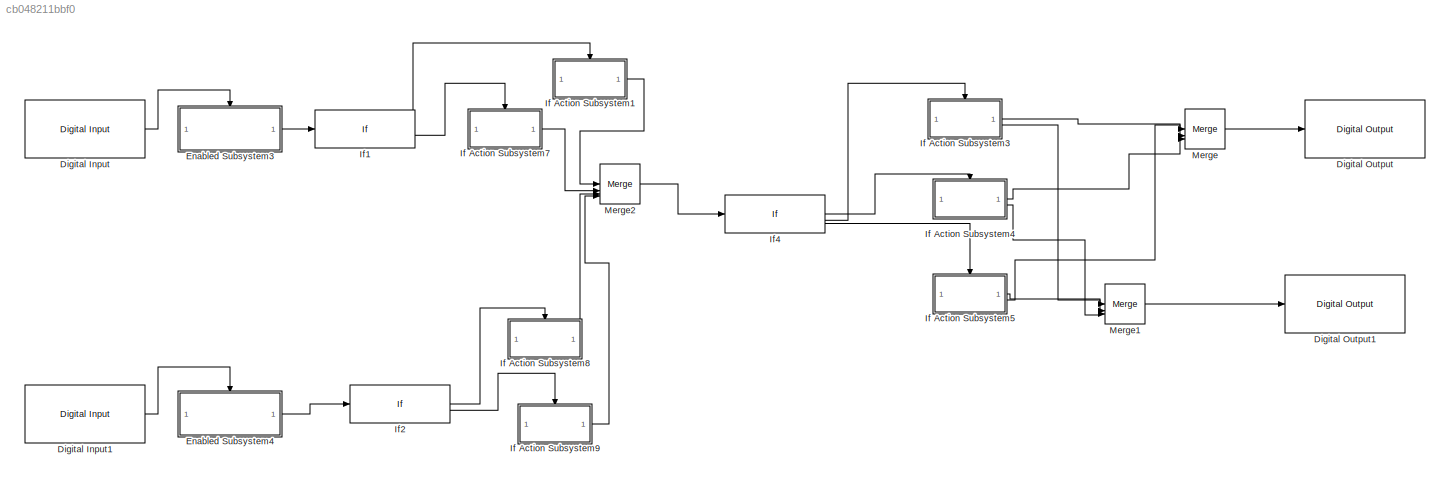
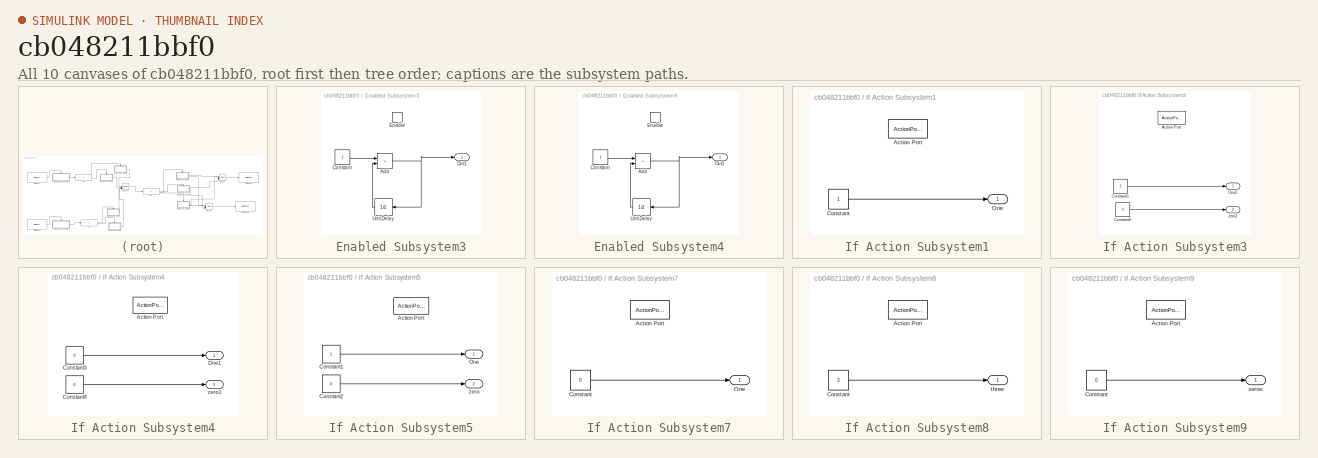
[diagram: thumbnail index - all 10 canvases of the model, root first then tree order]
MODEL slx_cb048211bbf0
KIND model
CONFIG AbsTol = auto
CONFIG EnableMultiTasking = on
CONFIG FixedStep = 1e-3
CONFIG MaxStep = auto
CONFIG MinStep = auto
CONFIG RelTol = 1e-3
CONFIG SampleTimeConstraint = Unconstrained
CONFIG SolverName = FixedStepDiscrete
CONFIG StartTime = 0.0
CONFIG StopTime = 10.0
BLOCK [Reference] Digital Input  REF=arduinolib/Digital Input
  SourceBlock = arduinolib/Digital Input
  SourceType = Arduino Digital Input
BLOCK [Reference] Digital Input1  REF=arduinolib/Digital Input
  SourceBlock = arduinolib/Digital Input
  SourceType = Arduino Digital Input
BLOCK [Reference] Digital Output  REF=arduinolib/Digital Output
  SourceBlock = arduinolib/Digital Output
  SourceType = Arduino Digital Output
BLOCK [Reference] Digital Output1  REF=arduinolib/Digital Output
  SourceBlock = arduinolib/Digital Output
  SourceType = Arduino Digital Output
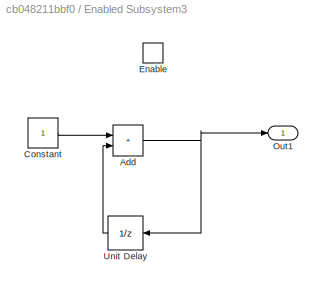
BLOCK [SubSystem] Enabled Subsystem3
  TreatAsAtomicUnit = on
BLOCK [Sum] Enabled Subsystem3/Add
  IconShape = rectangular
BLOCK [Constant] Enabled Subsystem3/Constant
BLOCK [EnablePort] Enabled Subsystem3/Enable
  StatesWhenEnabling = reset
BLOCK [Outport] Enabled Subsystem3/Out1
BLOCK [UnitDelay] Enabled Subsystem3/Unit Delay
  HasFrameUpgradeWarning = on
  SampleTime = -1
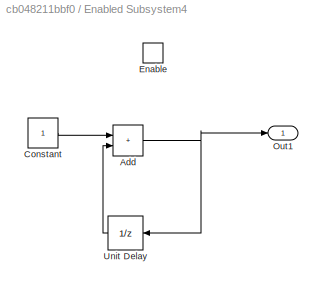
BLOCK [SubSystem] Enabled Subsystem4
  TreatAsAtomicUnit = on
BLOCK [Sum] Enabled Subsystem4/Add
  IconShape = rectangular
BLOCK [Constant] Enabled Subsystem4/Constant
BLOCK [EnablePort] Enabled Subsystem4/Enable
  StatesWhenEnabling = reset
BLOCK [Outport] Enabled Subsystem4/Out1
BLOCK [UnitDelay] Enabled Subsystem4/Unit Delay
  HasFrameUpgradeWarning = on
  SampleTime = -1
BLOCK [SubSystem] If Action Subsystem1
  TreatAsAtomicUnit = on
BLOCK [ActionPort] If Action Subsystem1/Action Port
  ActionPortLabel = if(u1 ==10)
BLOCK [Constant] If Action Subsystem1/Constant
BLOCK [Outport] If Action Subsystem1/One
BLOCK [SubSystem] If Action Subsystem3
  TreatAsAtomicUnit = on
BLOCK [ActionPort] If Action Subsystem3/Action Port
  ActionPortLabel = elseif((u1)==1)
BLOCK [Constant] If Action Subsystem3/Constant5
BLOCK [Constant] If Action Subsystem3/Constant6
  Value = 0
BLOCK [Outport] If Action Subsystem3/One2
BLOCK [Outport] If Action Subsystem3/zero2
  Port = 2
BLOCK [SubSystem] If Action Subsystem4
  TreatAsAtomicUnit = on
BLOCK [ActionPort] If Action Subsystem4/Action Port
  ActionPortLabel = if((u1)==0)
BLOCK [Constant] If Action Subsystem4/Constant3
  Value = 0
BLOCK [Constant] If Action Subsystem4/Constant4
  Value = 0
BLOCK [Outport] If Action Subsystem4/One1
BLOCK [Outport] If Action Subsystem4/zero1
  Port = 2
BLOCK [SubSystem] If Action Subsystem5
  TreatAsAtomicUnit = on
BLOCK [ActionPort] If Action Subsystem5/Action Port
  ActionPortLabel = elseif((u1)==3)
BLOCK [Constant] If Action Subsystem5/Constant1
BLOCK [Constant] If Action Subsystem5/Constant2
  Value = 0
BLOCK [Outport] If Action Subsystem5/One
BLOCK [Outport] If Action Subsystem5/zero
  Port = 2
BLOCK [SubSystem] If Action Subsystem7
  TreatAsAtomicUnit = on
BLOCK [ActionPort] If Action Subsystem7/Action Port
  ActionPortLabel = elseif(u1 ==20)
BLOCK [Constant] If Action Subsystem7/Constant
  Value = 0
BLOCK [Outport] If Action Subsystem7/One
BLOCK [SubSystem] If Action Subsystem8
  TreatAsAtomicUnit = on
BLOCK [ActionPort] If Action Subsystem8/Action Port
  ActionPortLabel = if(u1 == 10)
BLOCK [Constant] If Action Subsystem8/Constant
  Value = 3
BLOCK [Outport] If Action Subsystem8/three
BLOCK [SubSystem] If Action Subsystem9
  TreatAsAtomicUnit = on
BLOCK [ActionPort] If Action Subsystem9/Action Port
  ActionPortLabel = elseif(u1 == 20)
BLOCK [Constant] If Action Subsystem9/Constant
  Value = 0
BLOCK [Outport] If Action Subsystem9/zeroo
BLOCK [If] If1
  ElseIfExpressions = u1 ==20
  IfExpression = u1 ==10
  ShowElse = off
BLOCK [If] If2
  ElseIfExpressions = u1 == 20
  IfExpression = u1 == 10
  ShowElse = off
BLOCK [If] If4
  ElseIfExpressions = (u1)==1,(u1)==3
  IfExpression = (u1)==0
  ShowElse = off
BLOCK [Merge] Merge
  Inputs = 3
BLOCK [Merge] Merge1
  Inputs = 3
BLOCK [Merge] Merge2
  Inputs = 4
LINE Digital Input1:1 -> Enabled Subsystem4:enable
LINE Digital Input:1 -> Enabled Subsystem3:enable
NET Enabled Subsystem3/Add:1 -> Enabled Subsystem3/Out1:1, Enabled Subsystem3/Unit Delay:1
LINE Enabled Subsystem3/Constant:1 -> Enabled Subsystem3/Add:1
LINE Enabled Subsystem3/Unit Delay:1 -> Enabled Subsystem3/Add:2
LINE Enabled Subsystem3:1 -> If1:1
NET Enabled Subsystem4/Add:1 -> Enabled Subsystem4/Out1:1, Enabled Subsystem4/Unit Delay:1
LINE Enabled Subsystem4/Constant:1 -> Enabled Subsystem4/Add:1
LINE Enabled Subsystem4/Unit Delay:1 -> Enabled Subsystem4/Add:2
LINE Enabled Subsystem4:1 -> If2:1
LINE If Action Subsystem1/Constant:1 -> If Action Subsystem1/One:1
LINE If Action Subsystem1:1 -> Merge2:1
LINE If Action Subsystem3/Constant5:1 -> If Action Subsystem3/One2:1
LINE If Action Subsystem3/Constant6:1 -> If Action Subsystem3/zero2:1
LINE If Action Subsystem3:1 -> Merge:1
LINE If Action Subsystem3:2 -> Merge1:2
LINE If Action Subsystem4/Constant3:1 -> If Action Subsystem4/One1:1
LINE If Action Subsystem4/Constant4:1 -> If Action Subsystem4/zero1:1
LINE If Action Subsystem4:1 -> Merge:3
LINE If Action Subsystem4:2 -> Merge1:3
LINE If Action Subsystem5/Constant1:1 -> If Action Subsystem5/One:1
LINE If Action Subsystem5/Constant2:1 -> If Action Subsystem5/zero:1
LINE If Action Subsystem5:1 -> Merge1:1
LINE If Action Subsystem5:2 -> Merge:2
LINE If Action Subsystem7/Constant:1 -> If Action Subsystem7/One:1
LINE If Action Subsystem7:1 -> Merge2:2
LINE If Action Subsystem8/Constant:1 -> If Action Subsystem8/three:1
LINE If Action Subsystem8:1 -> Merge2:3
LINE If Action Subsystem9/Constant:1 -> If Action Subsystem9/zeroo:1
LINE If Action Subsystem9:1 -> Merge2:4
LINE If1:1 -> If Action Subsystem1:ifaction
LINE If1:2 -> If Action Subsystem7:ifaction
LINE If2:1 -> If Action Subsystem8:ifaction
LINE If2:2 -> If Action Subsystem9:ifaction
LINE If4:1 -> If Action Subsystem4:ifaction
LINE If4:2 -> If Action Subsystem3:ifaction
LINE If4:3 -> If Action Subsystem5:ifaction
LINE Merge1:1 -> Digital Output1:1
LINE Merge2:1 -> If4:1
LINE Merge:1 -> Digital Output:1
note: NET lines group one-source signal fan-out (src -> all destinations, sorted); 1:1 wires keep LINE
